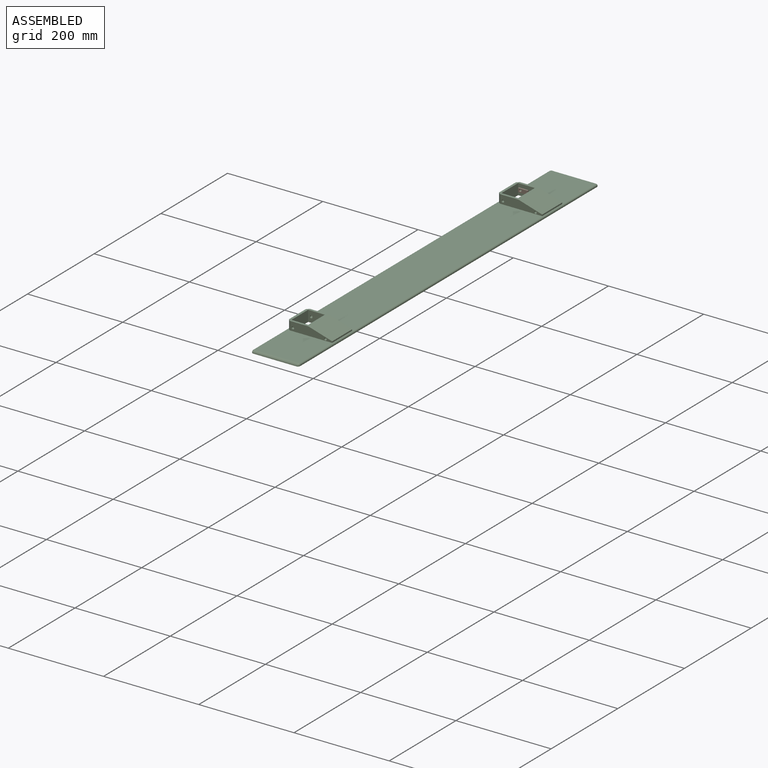
[diagram: assembled view]
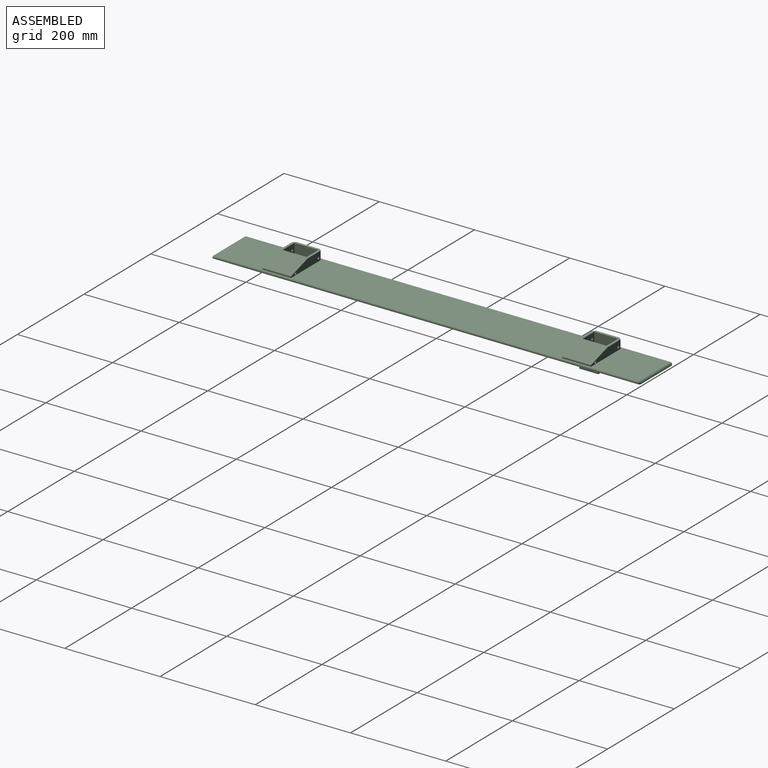
[diagram: assembled view, second angle]
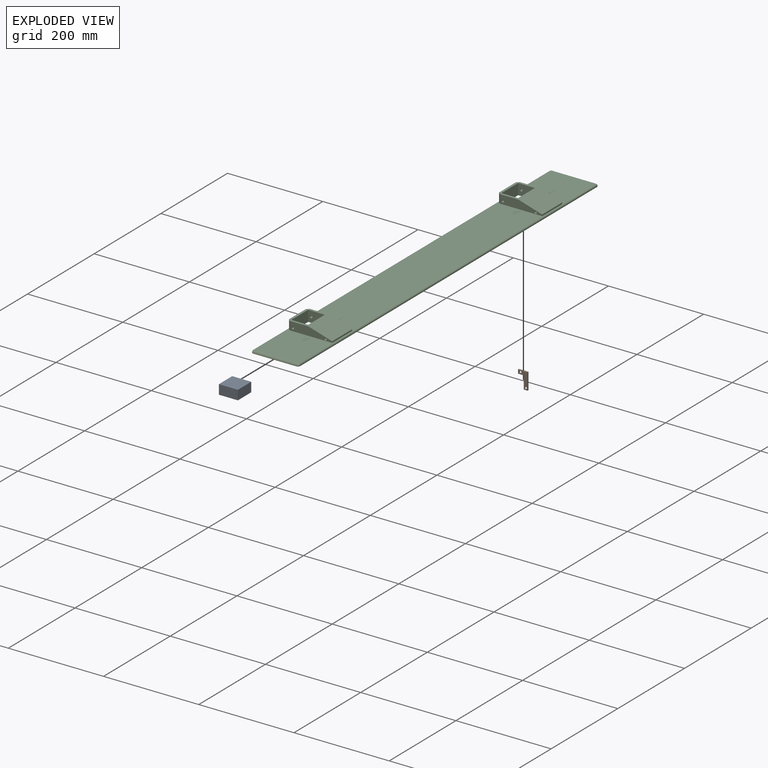
[diagram: exploded view]
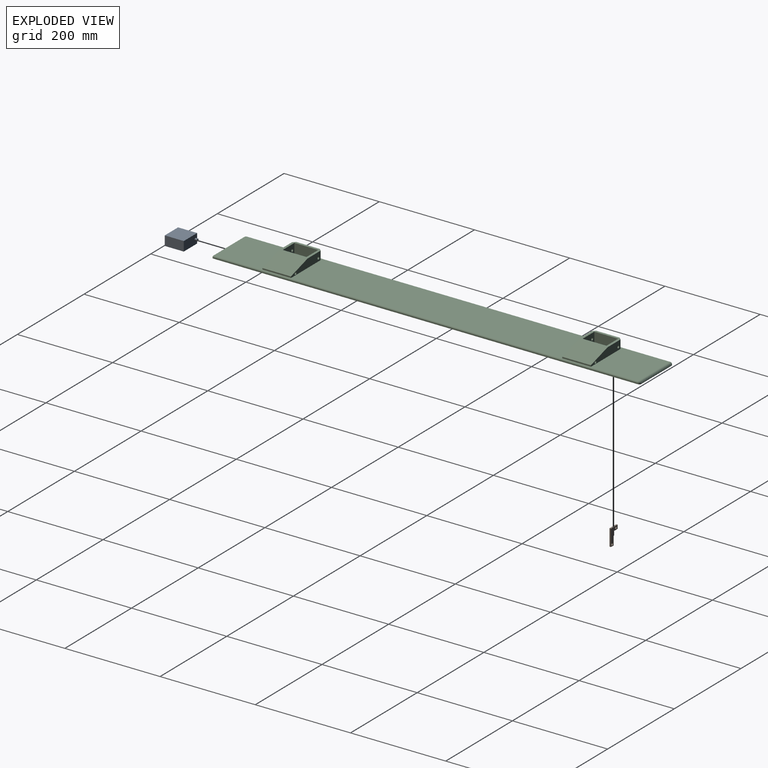
[diagram: exploded view, second angle]
ASSEMBLY  parts=3 mates=2
PART A: 8 faces, bbox 40x45x20 mm
  f0: plane 40x20mm, normal (-1,0,0), area 800mm2, adj f1,f3,f4,f5
  f1: plane 40x40mm, normal (0,0,-1), area 1600mm2, adj f0,f2,f4,f5
  f2: plane 40x20mm, normal (1,0,0), area 800mm2, adj f1,f3,f4,f5
  f3: plane 40x40mm, normal (0,0,1), area 1600mm2, adj f0,f2,f4,f5
  f4: plane 40x20mm, normal (0,-1,0), area 800mm2, adj f0,f1,f2,f3
  f5: plane 40x20mm, normal (0,1,0), area 780.4mm2, adj f0,f1,f2,f3,f6
  f6: cylinder r=2.5mm len=5mm, axis (0,-1,0), area 78.5mm2, adj f5,f7
  f7: plane 5x5mm, normal (0,1,0), area 19.6mm2, adj f6
PART B: 10 faces, bbox 35x3x20 mm
  f0: plane 20x3mm, normal (1,0,0), area 60mm2, adj f1,f5,f6,f7
  f1: plane 8x3mm, normal (0,0,1), area 24mm2, adj f0,f2,f6,f7
  f2: plane 12x3mm, normal (-1,0,0), area 36mm2, adj f1,f3,f6,f7
  f3: plane 27x3mm, normal (0,0,1), area 81mm2, adj f2,f4,f6,f7
  f4: plane 8x3mm, normal (-1,0,0), area 24mm2, adj f3,f5,f6,f7
  f5: plane 35x3mm, normal (0,0,-1), area 105mm2, adj f0,f4,f6,f7
  f6: plane 35x20mm, normal (0,-1,0), area 336.7mm2, adj f0,f1,f2,f3,f4,f5,f8,f9
  f7: plane 35x20mm, normal (0,1,0), area 336.7mm2, adj f0,f1,f2,f3,f4,f5,f8,f9
  f8: cylinder r=2.5mm len=5mm, axis (0,1,0), area 47.1mm2, adj f6,f7
  f9: cylinder r=2.5mm len=5mm, axis (0,1,0), area 47.1mm2, adj f6,f7
PART C: 48 faces, bbox 900x100x23 mm
  f0: plane 900x100mm, normal (0,0,-1), area 86478.5mm2, adj f8,f9,f12,f14,f16,f17,f19,f21
  f1: plane 60x44mm, normal (0,0,1), area 865mm2, adj f22,f24,f25,f31,f34,f35,f38,f39
  f2: plane 60x44mm, normal (0,0,1), area 865mm2, adj f27,f28,f29,f30,f32,f33,f42,f43
  f3: cylinder r=2.65mm len=5.3mm, axis (-1,0,0), area 83.3mm2, adj f27,f45
  f4: cylinder r=2.65mm len=5.3mm, axis (-1,0,0), area 83.3mm2, adj f24,f41
  f5: plane 580x94mm, normal (0,0,1), area 53605mm2, adj f10,f11,f24,f29,f33,f34
  f6: plane 105x94mm, normal (0,0,1), area 9412.5mm2, adj f10,f11,f14,f22,f35
  f7: plane 105x94mm, normal (0,0,1), area 9412.5mm2, adj f10,f11,f19,f27,f32
  f8: plane 890x2mm, normal (0,-1,0), area 1780mm2, adj f0,f11,f12,f21
  f9: plane 890x2mm, normal (0,1,0), area 1780mm2, adj f0,f10,f16,f17
  f10: cylinder r=3mm len=890mm, axis (-1,0,0), area 4194mm2, adj f5,f6,f7,f9,f15,f18,f25,f28
  f11: cylinder r=3mm len=890mm, axis (1,0,0), area 4194mm2, adj f5,f6,f7,f8,f13,f20,f23,f26
  f12: cylinder r=5mm len=5mm, axis (0,0,1), area 10mm2, adj f0,f8,f13
  f13: bspline ~6.03x5mm, area 24.5mm2, adj f11,f12,f14
  f14: cylinder r=5mm len=94mm, axis (0,-1,0), area 726.9mm2, adj f0,f6,f13,f15
  f15: bspline ~5.26x5mm, area 24.5mm2, adj f10,f14,f16
  f16: cylinder r=5mm len=5mm, axis (0,0,-1), area 10mm2, adj f0,f9,f15
  f17: cylinder r=5mm len=5mm, axis (0,0,1), area 10mm2, adj f0,f9,f18
  f18: bspline ~6.03x5mm, area 24.5mm2, adj f10,f17,f19
  f19: cylinder r=5mm len=94mm, axis (0,1,0), area 726.9mm2, adj f0,f7,f18,f20
  f20: bspline ~6.03x5mm, area 24.5mm2, adj f11,f19,f21
  f21: cylinder r=5mm len=5mm, axis (0,0,-1), area 10mm2, adj f0,f8,f20
  f22: plane 89x18mm, normal (-1,0,0), area 1185.3mm2, adj f1,f6,f23,f31,f35,f37,f47
  f23: plane 60x3mm, normal (0,-1,0), area 180mm2, adj f11,f22,f24,f31
  f24: plane 89x18mm, normal (1,0,0), area 1185.3mm2, adj f1,f4,f5,f23,f31,f34,f47
  f25: plane 50x18mm, normal (0,1,0), area 900mm2, adj f1,f10,f34,f35
  f26: plane 60x3mm, normal (0,-1,0), area 180mm2, adj f11,f27,f29,f30
  f27: plane 89x18mm, normal (1,0,0), area 1185.3mm2, adj f2,f3,f7,f26,f30,f32,f46
  f28: plane 50x18mm, normal (0,1,0), area 900mm2, adj f2,f10,f32,f33
  f29: plane 89x18mm, normal (-1,0,0), area 1185.3mm2, adj f2,f5,f26,f30,f33,f36,f46
  f30: plane 60x50mm, normal (0,-0.29,0.96), area 3132.1mm2, adj f2,f26,f27,f29
  f31: plane 60x50mm, normal (0,-0.29,0.96), area 3132.1mm2, adj f1,f22,f23,f24
  f32: plane 18x5mm, normal (0.71,0.71,0), area 127.3mm2, adj f2,f7,f27,f28
  f33: plane 18x5mm, normal (-0.71,0.71,0), area 127.3mm2, adj f2,f5,f28,f29
  f34: plane 18x5mm, normal (0.71,0.71,0), area 127.3mm2, adj f1,f5,f24,f25
  f35: plane 18x5mm, normal (-0.71,0.71,0), area 127.3mm2, adj f1,f6,f22,f25
  f36: cylinder r=2.65mm len=5.3mm, axis (-1,0,0), area 83.3mm2, adj f29,f44
  f37: cylinder r=2.65mm len=5.3mm, axis (-1,0,0), area 83.3mm2, adj f22,f40
  f38: plane 50x23mm, normal (0,-1,0), area 1150mm2, adj f0,f1,f40,f41
  f39: plane 50x23mm, normal (0,1,0), area 1150mm2, adj f0,f1,f40,f41
  f40: plane 35x23mm, normal (1,0,0), area 782.9mm2, adj f0,f1,f37,f38,f39
  f41: plane 35x23mm, normal (-1,0,0), area 782.9mm2, adj f0,f1,f4,f38,f39
  f42: plane 50x23mm, normal (0,-1,0), area 1150mm2, adj f0,f2,f44,f45
  f43: plane 50x23mm, normal (0,1,0), area 1150mm2, adj f0,f2,f44,f45
  f44: plane 35x23mm, normal (1,0,0), area 782.9mm2, adj f0,f2,f36,f42,f43
  f45: plane 35x23mm, normal (-1,0,0), area 782.9mm2, adj f0,f2,f3,f42,f43
  f46: cylinder r=2.5mm len=60mm, axis (-1,0,0), area 942.5mm2, adj f27,f29
  f47: cylinder r=2.5mm len=60mm, axis (-1,0,0), area 942.5mm2, adj f22,f24
PLACE A rot(axis=(-0.75,0.53,-0.39),0deg) t=(-10.32,145,-2.24)mm
PLACE B rot(axis=(0,-1,0),90deg) t=(-33.13,150,-11.45)mm
PLACE C rot(axis=(0,0,1),90deg) t=(-82.41,-758.13,44.44)mm
MATE revolute B.f8 <-> A.f6  axis (0,1,0) through (-56.6,150,17.35)mm
MATE revolute B.f9 <-> C.f3  axis (0,1,0) through (-68.02,150,44.44)mm
